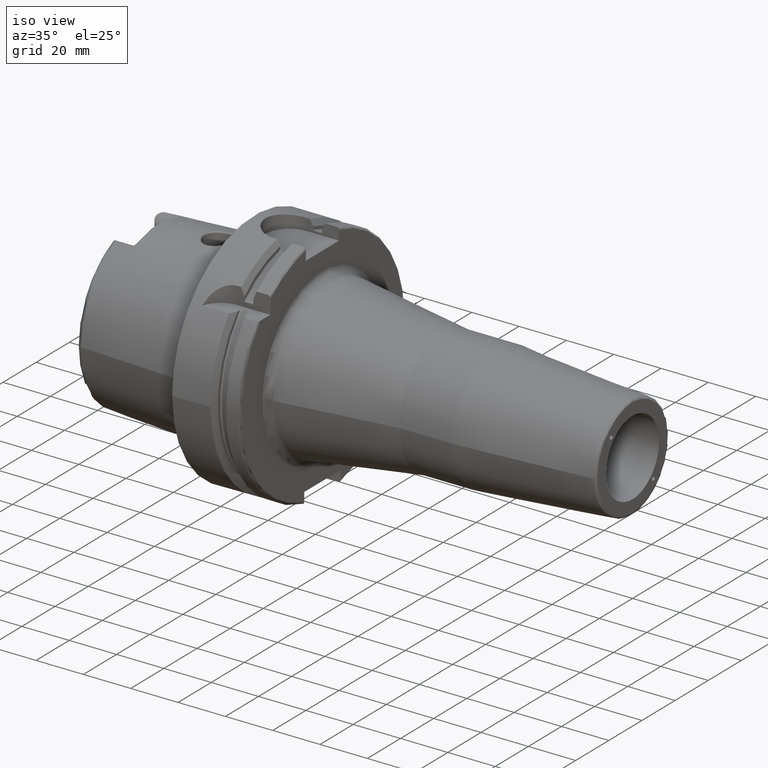
[diagram: clean part render]
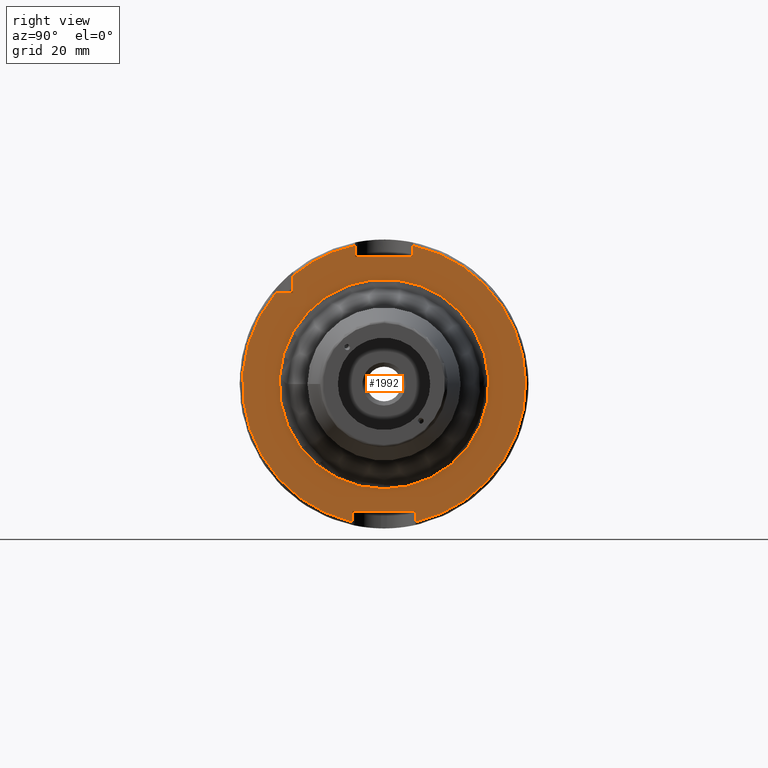
[diagram: tour spotlight — one face highlighted and labeled with its STEP entity id]
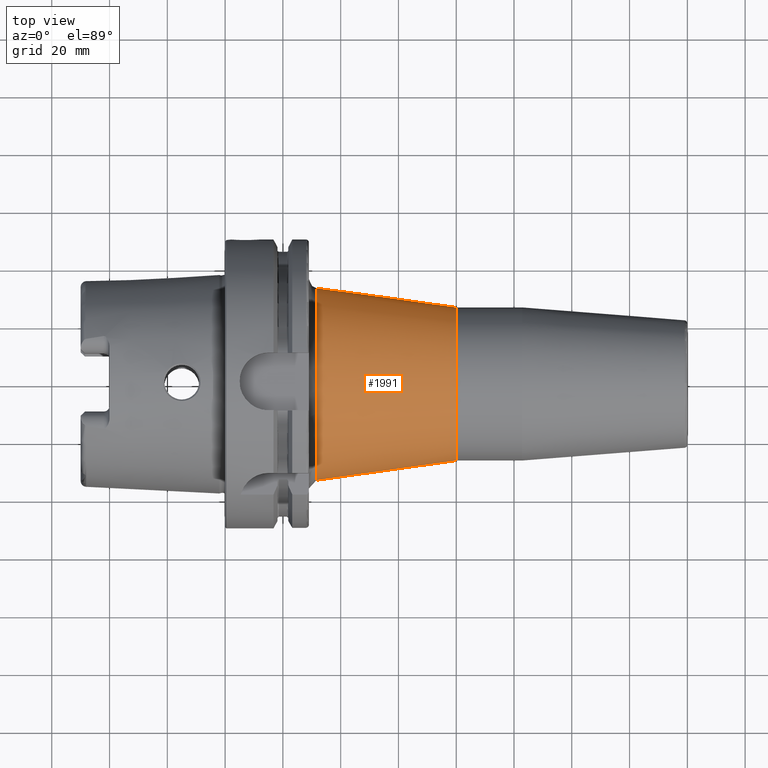
[diagram: tour spotlight — one face highlighted and labeled with its STEP entity id]
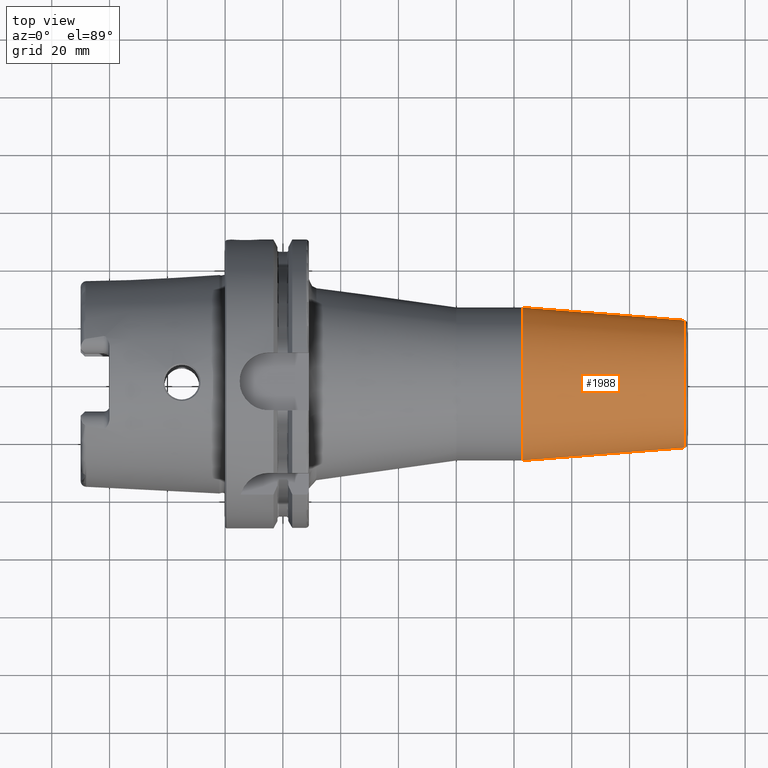
[diagram: tour spotlight — one face highlighted and labeled with its STEP entity id]
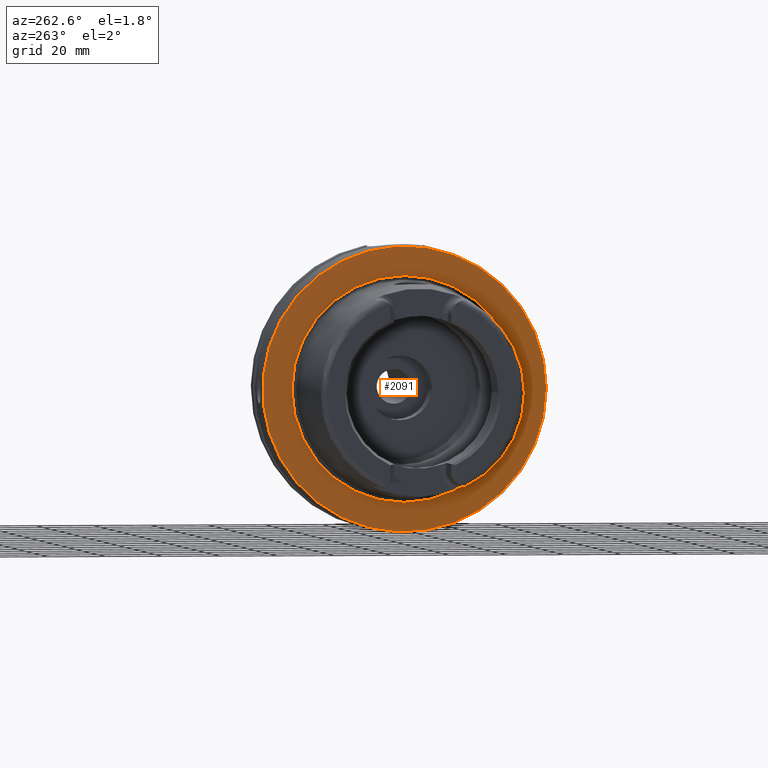
[diagram: tour spotlight — one face highlighted and labeled with its STEP entity id]
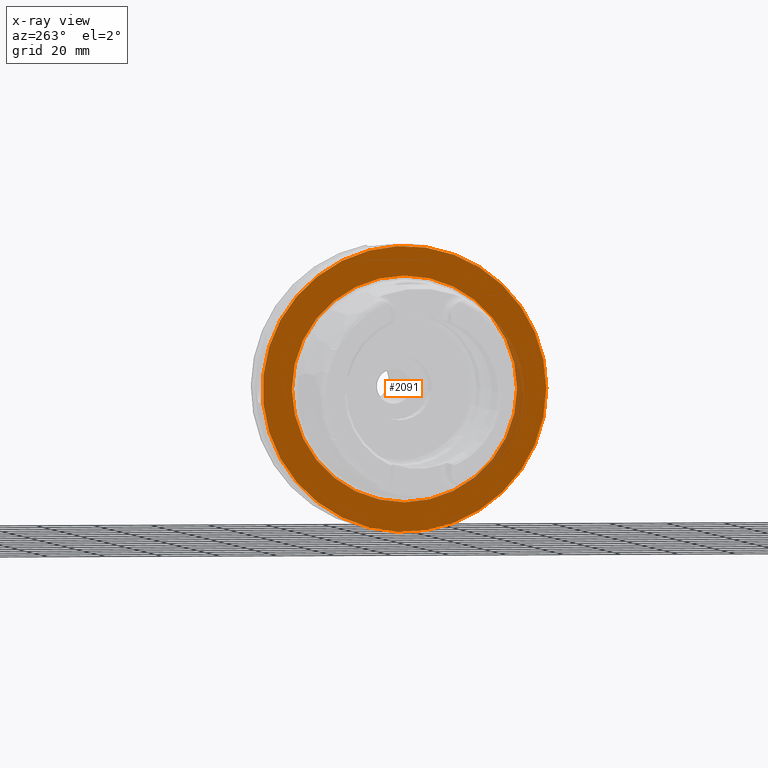
[diagram: x-ray of the same camera — body ghosted, this tour face saturated]
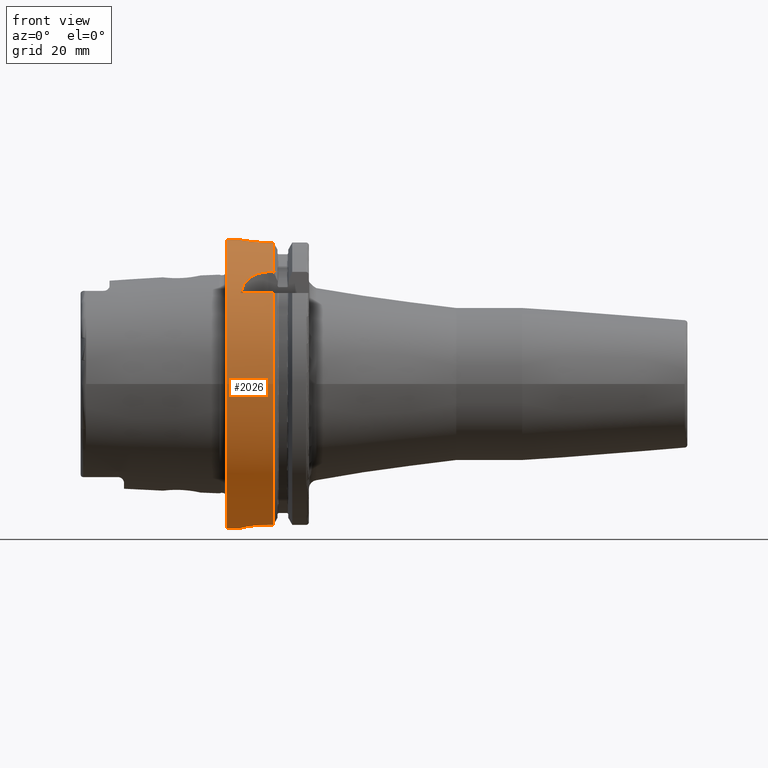
[diagram: tour spotlight — one face highlighted and labeled with its STEP entity id]
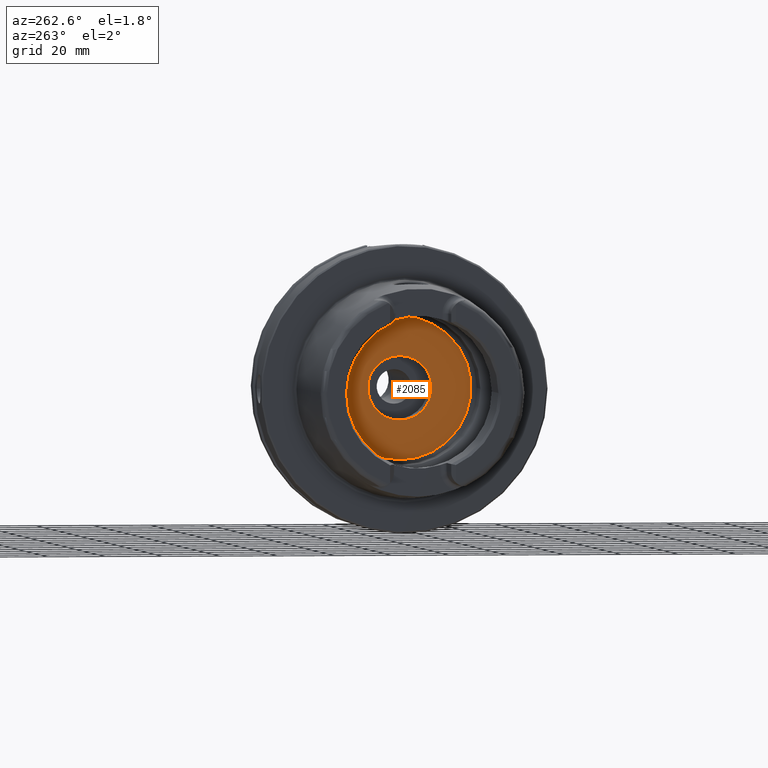
[diagram: tour spotlight — one face highlighted and labeled with its STEP entity id]
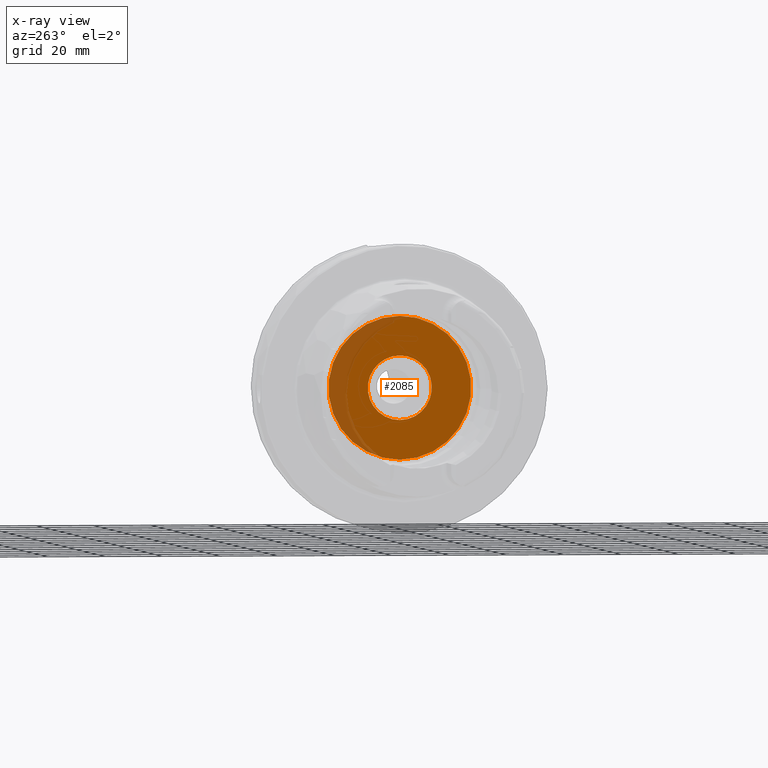
[diagram: x-ray of the same camera — body ghosted, this tour face saturated]
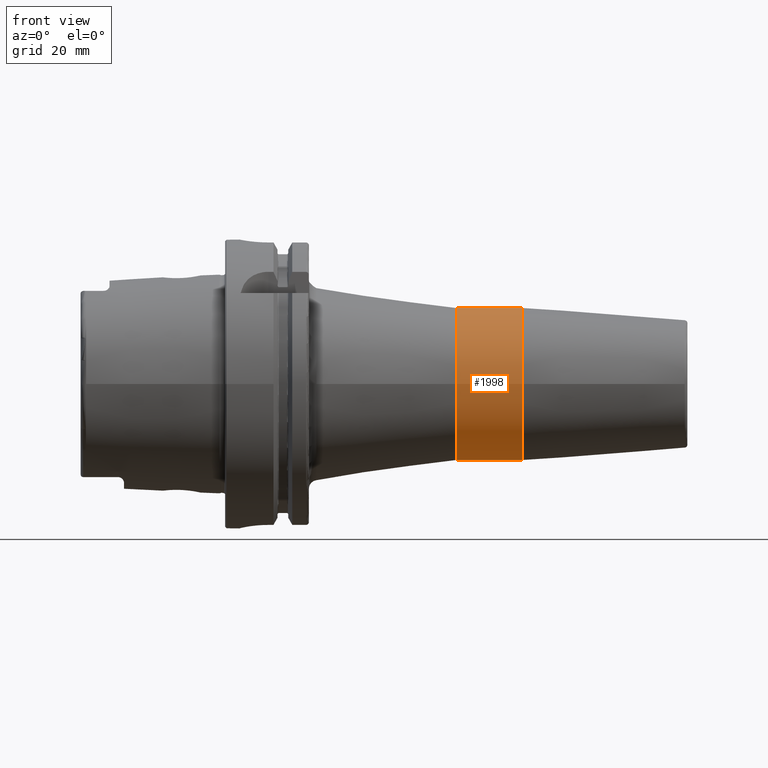
[diagram: tour spotlight — one face highlighted and labeled with its STEP entity id]
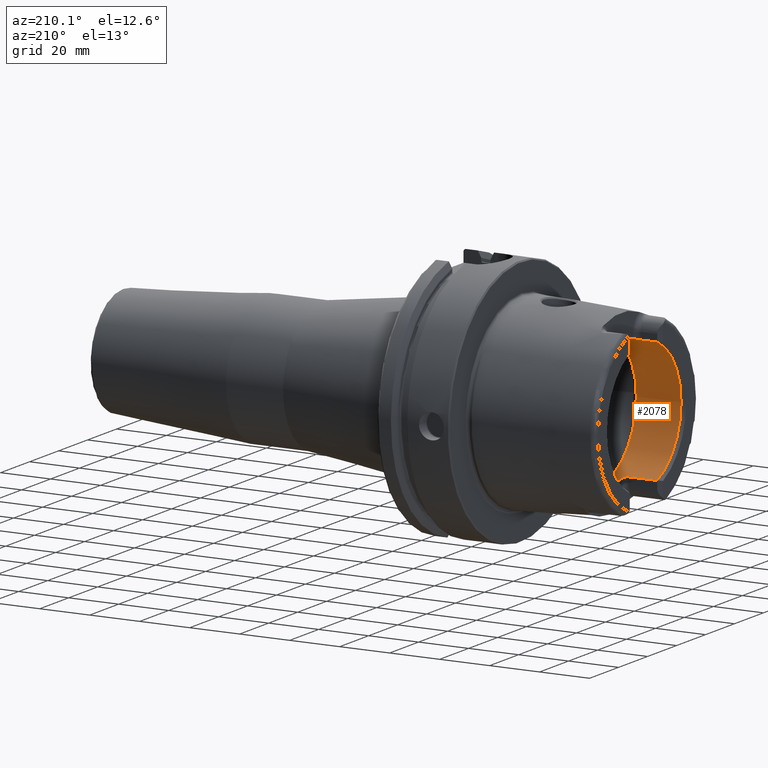
[diagram: tour spotlight — one face highlighted and labeled with its STEP entity id]
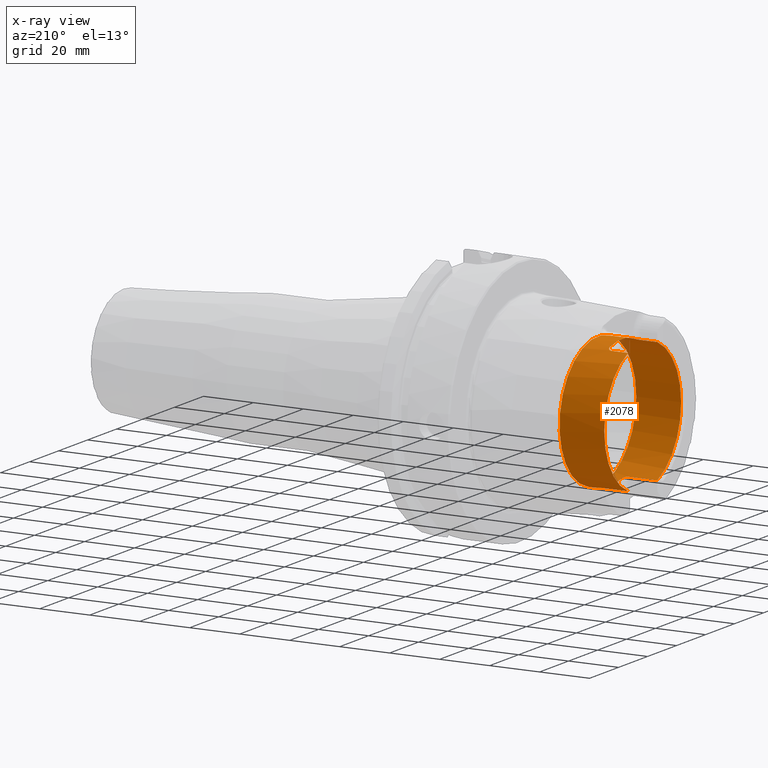
[diagram: x-ray of the same camera — body ghosted, this tour face saturated]
A machine part: a face-by-face anatomy tour. The part has 120 B-rep faces; the first image is the clean iso view, then the 8 largest visible faces are spotlighted one at a time (largest first), each with its STEP entity span.

Face 1 — right view, entity #1992. In plain terms, the highlighted planar face has unit normal (1, 0, 0).
Definition (entity closure, byte-faithful):
#88=FACE_BOUND('',#341,.T.);
#99=PLANE('',#2150);
#217=FACE_OUTER_BOUND('',#340,.T.);
#340=EDGE_LOOP('',(#1369,#1370,#1371,#1372,#1373,#1374,#1375,#1376,#1377,
#1378,#1379));
#341=EDGE_LOOP('',(#1380));
#467=LINE('',#3062,#575);
#468=LINE('',#3066,#576);
#469=LINE('',#3068,#577);
#470=LINE('',#3070,#578);
#471=LINE('',#3074,#579);
#472=LINE('',#3076,#580);
#473=LINE('',#3078,#581);
#474=LINE('',#3081,#582);
#575=VECTOR('',#2443,10.);
#576=VECTOR('',#2446,10.);
#577=VECTOR('',#2447,10.);
#578=VECTOR('',#2448,10.);
#579=VECTOR('',#2451,10.);
#580=VECTOR('',#2452,10.);
#581=VECTOR('',#2453,10.);
#582=VECTOR('',#2456,10.);
#687=CIRCLE('',#2146,36.2754427832707);
#690=CIRCLE('',#2151,49.);
#691=CIRCLE('',#2152,49.);
#692=CIRCLE('',#2153,49.);
#821=VERTEX_POINT('',#3051);
#823=VERTEX_POINT('',#3060);
#824=VERTEX_POINT('',#3061);
#825=VERTEX_POINT('',#3063);
#826=VERTEX_POINT('',#3065);
#827=VERTEX_POINT('',#3067);
#828=VERTEX_POINT('',#3069);
#829=VERTEX_POINT('',#3071);
#830=VERTEX_POINT('',#3073);
#831=VERTEX_POINT('',#3075);
#832=VERTEX_POINT('',#3077);
#833=VERTEX_POINT('',#3079);
#1031=EDGE_CURVE('',#821,#821,#687,.T.);
#1035=EDGE_CURVE('',#823,#824,#467,.T.);
#1036=EDGE_CURVE('',#824,#825,#690,.T.);
#1037=EDGE_CURVE('',#825,#826,#468,.T.);
#1038=EDGE_CURVE('',#826,#827,#469,.T.);
#1039=EDGE_CURVE('',#827,#828,#470,.T.);
#1040=EDGE_CURVE('',#828,#829,#691,.T.);
#1041=EDGE_CURVE('',#829,#830,#471,.T.);
#1042=EDGE_CURVE('',#830,#831,#472,.T.);
#1043=EDGE_CURVE('',#831,#832,#473,.T.);
#1044=EDGE_CURVE('',#832,#833,#692,.T.);
#1045=EDGE_CURVE('',#833,#823,#474,.T.);
#1369=ORIENTED_EDGE('',*,*,#1035,.T.);
#1370=ORIENTED_EDGE('',*,*,#1036,.T.);
#1371=ORIENTED_EDGE('',*,*,#1037,.T.);
#1372=ORIENTED_EDGE('',*,*,#1038,.T.);
#1373=ORIENTED_EDGE('',*,*,#1039,.T.);
#1374=ORIENTED_EDGE('',*,*,#1040,.T.);
#1375=ORIENTED_EDGE('',*,*,#1041,.T.);
#1376=ORIENTED_EDGE('',*,*,#1042,.T.);
#1377=ORIENTED_EDGE('',*,*,#1043,.T.);
#1378=ORIENTED_EDGE('',*,*,#1044,.T.);
#1379=ORIENTED_EDGE('',*,*,#1045,.T.);
#1380=ORIENTED_EDGE('',*,*,#1031,.F.);
#1992=ADVANCED_FACE('',(#217,#88),#99,.T.);
#2146=AXIS2_PLACEMENT_3D('',#3053,#2432,#2433);
#2150=AXIS2_PLACEMENT_3D('',#3059,#2441,#2442);
#2151=AXIS2_PLACEMENT_3D('',#3064,#2444,#2445);
#2152=AXIS2_PLACEMENT_3D('',#3072,#2449,#2450);
#2153=AXIS2_PLACEMENT_3D('',#3080,#2454,#2455);
#2432=DIRECTION('center_axis',(1.,0.,0.));
#2433=DIRECTION('ref_axis',(0.,-1.,-1.22464679914735E-16));
#2441=DIRECTION('center_axis',(1.,0.,0.));
#2442=DIRECTION('ref_axis',(0.,0.,-1.));
#2443=DIRECTION('',(0.,-1.,0.));
#2444=DIRECTION('center_axis',(1.,0.,0.));
#2445=DIRECTION('ref_axis',(0.,0.,-1.));
#2446=DIRECTION('',(0.,0.,1.));
#2447=DIRECTION('',(0.,1.,0.));
#2448=DIRECTION('',(0.,0.,-1.));
#2449=DIRECTION('center_axis',(1.,0.,0.));
#2450=DIRECTION('ref_axis',(0.,0.,-1.));
#2451=DIRECTION('',(0.,0.,-1.));
#2452=DIRECTION('',(0.,-1.,0.));
#2453=DIRECTION('',(0.,0.,1.));
#2454=DIRECTION('center_axis',(1.,0.,0.));
#2455=DIRECTION('ref_axis',(0.,0.,-1.));
#2456=DIRECTION('',(0.,0.,-1.));
#3051=CARTESIAN_POINT('',(29.,-4.44246048921854E-15,-36.2754427832707));
#3053=CARTESIAN_POINT('Origin',(29.,0.,0.));
#3059=CARTESIAN_POINT('Origin',(29.,0.,0.));
#3060=CARTESIAN_POINT('',(29.,-31.5,31.5));
#3061=CARTESIAN_POINT('',(29.,-37.5333185316726,31.5));
#3062=CARTESIAN_POINT('',(29.,-18.25,31.5));
#3063=CARTESIAN_POINT('',(29.,-11.,-47.7493455452533));
#3064=CARTESIAN_POINT('Origin',(29.,0.,0.));
#3065=CARTESIAN_POINT('',(29.,-11.,-44.));
#3066=CARTESIAN_POINT('',(29.,-11.,-22.));
#3067=CARTESIAN_POINT('',(29.,11.,-44.));
#3068=CARTESIAN_POINT('',(29.,-5.55111512312578E-16,-44.));
#3069=CARTESIAN_POINT('',(29.,11.,-47.7493455452533));
#3070=CARTESIAN_POINT('',(29.,11.,-22.));
#3071=CARTESIAN_POINT('',(29.,10.,47.9687398208458));
#3072=CARTESIAN_POINT('Origin',(29.,0.,0.));
#3073=CARTESIAN_POINT('',(29.,10.,44.));
#3074=CARTESIAN_POINT('',(29.,10.,22.));
#3075=CARTESIAN_POINT('',(29.,-10.,44.));
#3076=CARTESIAN_POINT('',(29.,0.,44.));
#3077=CARTESIAN_POINT('',(29.,-10.,47.9687398208458));
#3078=CARTESIAN_POINT('',(29.,-10.,22.));
#3079=CARTESIAN_POINT('',(29.,-31.5,37.5333185316726));
#3080=CARTESIAN_POINT('Origin',(29.,0.,0.));
#3081=CARTESIAN_POINT('',(29.,-31.5,15.75));

Face 2 — top view, entity #1991. In plain terms, the highlighted conical surface has half-angle 8 deg.
Definition (entity closure, byte-faithful):
#216=FACE_OUTER_BOUND('',#339,.T.);
#339=EDGE_LOOP('',(#1364,#1365,#1366,#1367,#1368));
#466=LINE('',#3058,#574);
#574=VECTOR('',#2440,30.083791284911);
#685=CIRCLE('',#2144,33.3046385770459);
#688=CIRCLE('',#2147,33.3046385770459);
#689=CIRCLE('',#2149,26.5);
#819=VERTEX_POINT('',#3048);
#820=VERTEX_POINT('',#3049);
#822=VERTEX_POINT('',#3056);
#1029=EDGE_CURVE('',#819,#820,#685,.T.);
#1032=EDGE_CURVE('',#820,#819,#688,.T.);
#1033=EDGE_CURVE('',#822,#822,#689,.T.);
#1034=EDGE_CURVE('',#822,#819,#466,.T.);
#1364=ORIENTED_EDGE('',*,*,#1033,.F.);
#1365=ORIENTED_EDGE('',*,*,#1034,.T.);
#1366=ORIENTED_EDGE('',*,*,#1032,.F.);
#1367=ORIENTED_EDGE('',*,*,#1029,.F.);
#1368=ORIENTED_EDGE('',*,*,#1034,.F.);
#1968=CONICAL_SURFACE('',#2148,30.083791284911,0.139626340159547);
#1991=ADVANCED_FACE('',(#216),#1968,.T.);
#2144=AXIS2_PLACEMENT_3D('',#3050,#2428,#2429);
#2147=AXIS2_PLACEMENT_3D('',#3054,#2434,#2435);
#2148=AXIS2_PLACEMENT_3D('',#3055,#2436,#2437);
#2149=AXIS2_PLACEMENT_3D('',#3057,#2438,#2439);
#2428=DIRECTION('center_axis',(-1.,0.,0.));
#2429=DIRECTION('ref_axis',(0.,-1.,-1.22464679914735E-16));
#2434=DIRECTION('center_axis',(-1.,0.,0.));
#2435=DIRECTION('ref_axis',(0.,-1.,-1.22464679914735E-16));
#2436=DIRECTION('center_axis',(-1.,0.,0.));
#2437=DIRECTION('ref_axis',(0.,1.,0.));
#2438=DIRECTION('center_axis',(1.,0.,0.));
#2439=DIRECTION('ref_axis',(0.,0.,-1.));
#2440=DIRECTION('',(-0.99026806874157,-0.139173100960066,-1.70437892618156E-17));
#3048=CARTESIAN_POINT('',(31.5824806971198,-33.3046385770459,-4.07864190301388E-15));
#3049=CARTESIAN_POINT('',(31.5824806971198,-4.07864190301388E-15,-33.3046385770459));
#3050=CARTESIAN_POINT('Origin',(31.5824806971198,0.,-7.39557098644699E-31));
#3054=CARTESIAN_POINT('Origin',(31.5824806971198,0.,-7.39557098644699E-31));
#3055=CARTESIAN_POINT('Origin',(54.5,0.,0.));
#3056=CARTESIAN_POINT('',(80.,-26.5,-3.24531401774049E-15));
#3057=CARTESIAN_POINT('Origin',(80.,0.,0.));
#3058=CARTESIAN_POINT('',(54.5,-30.083791284911,-3.68420187032833E-15));

Face 3 — top view, entity #1988. In plain terms, the highlighted conical surface has half-angle 4.5 deg.
Definition (entity closure, byte-faithful):
#213=FACE_OUTER_BOUND('',#333,.T.);
#333=EDGE_LOOP('',(#1350,#1351,#1352,#1353,#1354));
#465=LINE('',#3042,#573);
#573=VECTOR('',#2419,24.25);
#681=CIRCLE('',#2137,22.0725268420749);
#682=CIRCLE('',#2138,22.0725268420749);
#683=CIRCLE('',#2140,26.5);
#815=VERTEX_POINT('',#3035);
#816=VERTEX_POINT('',#3037);
#817=VERTEX_POINT('',#3041);
#1024=EDGE_CURVE('',#815,#816,#681,.T.);
#1025=EDGE_CURVE('',#816,#815,#682,.T.);
#1026=EDGE_CURVE('',#816,#817,#465,.T.);
#1027=EDGE_CURVE('',#817,#817,#683,.T.);
#1350=ORIENTED_EDGE('',*,*,#1025,.F.);
#1351=ORIENTED_EDGE('',*,*,#1026,.T.);
#1352=ORIENTED_EDGE('',*,*,#1027,.T.);
#1353=ORIENTED_EDGE('',*,*,#1026,.F.);
#1354=ORIENTED_EDGE('',*,*,#1024,.F.);
#1967=CONICAL_SURFACE('',#2139,24.25,0.0785398163397448);
#1988=ADVANCED_FACE('',(#213),#1967,.T.);
#2137=AXIS2_PLACEMENT_3D('',#3038,#2413,#2414);
#2138=AXIS2_PLACEMENT_3D('',#3039,#2415,#2416);
#2139=AXIS2_PLACEMENT_3D('',#3040,#2417,#2418);
#2140=AXIS2_PLACEMENT_3D('',#3043,#2420,#2421);
#2413=DIRECTION('center_axis',(1.,0.,0.));
#2414=DIRECTION('ref_axis',(0.,-1.,3.06161699786838E-17));
#2415=DIRECTION('center_axis',(1.,0.,0.));
#2416=DIRECTION('ref_axis',(0.,-1.,3.06161699786838E-17));
#2417=DIRECTION('center_axis',(-1.,0.,0.));
#2418=DIRECTION('ref_axis',(0.,1.,0.));
#2419=DIRECTION('',(-0.996917333733128,-0.0784590957278449,-9.60846804471011E-18));
#2420=DIRECTION('center_axis',(1.,0.,0.));
#2421=DIRECTION('ref_axis',(0.,0.,-1.));
#3035=CARTESIAN_POINT('',(159.078459095728,-2.70310493462411E-15,22.0725268420749));
#3037=CARTESIAN_POINT('',(159.078459095728,-22.0725268420749,-2.70310493462411E-15));
#3038=CARTESIAN_POINT('Origin',(159.078459095728,0.,-3.37888116828014E-15));
#3039=CARTESIAN_POINT('Origin',(159.078459095728,0.,-3.37888116828014E-15));
#3040=CARTESIAN_POINT('Origin',(131.411039343607,0.,0.));
#3041=CARTESIAN_POINT('',(102.822078687214,-26.5,-3.24531401774049E-15));
#3042=CARTESIAN_POINT('',(131.411039343607,-24.25,-2.96976848793233E-15));
#3043=CARTESIAN_POINT('Origin',(102.822078687214,0.,0.));

Face 4 — auxiliary view, entity #2091. An x-ray twin of the same camera follows (body ghosted, this face saturated) — the face is partly hidden behind the body. In plain terms, the highlighted planar face has unit normal (-1, 0, 0).
Definition (entity closure, byte-faithful):
#97=FACE_BOUND('',#449,.T.);
#133=PLANE('',#2362);
#316=FACE_OUTER_BOUND('',#448,.T.);
#448=EDGE_LOOP('',(#1915));
#449=EDGE_LOOP('',(#1916));
#796=CIRCLE('',#2361,39.2747800249997);
#797=CIRCLE('',#2363,49.5);
#1009=VERTEX_POINT('',#4502);
#1010=VERTEX_POINT('',#4506);
#1316=EDGE_CURVE('',#1009,#1009,#796,.T.);
#1317=EDGE_CURVE('',#1010,#1010,#797,.T.);
#1915=ORIENTED_EDGE('',*,*,#1317,.F.);
#1916=ORIENTED_EDGE('',*,*,#1316,.T.);
#2091=ADVANCED_FACE('',(#316,#97),#133,.T.);
#2361=AXIS2_PLACEMENT_3D('',#4504,#2962,#2963);
#2362=AXIS2_PLACEMENT_3D('',#4505,#2964,#2965);
#2363=AXIS2_PLACEMENT_3D('',#4507,#2966,#2967);
#2962=DIRECTION('center_axis',(1.,0.,0.));
#2963=DIRECTION('ref_axis',(0.,0.,-1.));
#2964=DIRECTION('center_axis',(-1.,0.,0.));
#2965=DIRECTION('ref_axis',(0.,0.,1.));
#2966=DIRECTION('center_axis',(1.,0.,0.));
#2967=DIRECTION('ref_axis',(0.,0.,-1.));
#4502=CARTESIAN_POINT('',(-1.04950770296597E-15,-39.2747800249997,-4.80977336448322E-15));
#4504=CARTESIAN_POINT('Origin',(0.,0.,0.));
#4505=CARTESIAN_POINT('Origin',(0.,49.5,0.));
#4506=CARTESIAN_POINT('',(1.28369537222284E-15,-49.5,-6.0620016557794E-15));
#4507=CARTESIAN_POINT('Origin',(0.,0.,0.));

Face 5 — front view, entity #2026. In plain terms, the highlighted cylindrical surface (bore or boss wall) has radius 50 mm, axis along (1, 0, 0).
Definition (entity closure, byte-faithful):
#56=B_SPLINE_CURVE_WITH_KNOTS('',3,(#3858,#3859,#3860,#3861,#3862,#3863,
#3864,#3865,#3866,#3867,#3868,#3869,#3870,#3871,#3872,#3873,#3874,#3875,
#3876,#3877,#3878,#3879,#3880,#3881,#3882,#3883),.UNSPECIFIED.,.F.,.F.,
(4,2,2,2,2,2,2,2,2,2,2,2,4),(0.,0.188478911015149,0.376957822030298,0.565436091508923,
0.753914360987547,0.942392630466172,1.1308708999448,1.31934981095995,1.50782872197509,
1.69630763299024,1.88478654400539,2.07326481348402,2.26174308296264),
 .UNSPECIFIED.);
#57=B_SPLINE_CURVE_WITH_KNOTS('',3,(#3884,#3885,#3886,#3887,#3888,#3889,
#3890,#3891,#3892,#3893),.UNSPECIFIED.,.F.,.F.,(4,2,2,2,4),(2.26174308296264,
2.45022135244127,2.63869962191989,2.82717853293504,3.01565744395019),
 .UNSPECIFIED.);
#58=B_SPLINE_CURVE_WITH_KNOTS('',3,(#3897,#3898,#3899,#3900,#3901,#3902,
#3903,#3904,#3905,#3906,#3907,#3908),.UNSPECIFIED.,.F.,.F.,(4,2,2,2,2,4),
(1.13213255574021,1.59216410027009,1.87572541272146,2.15928672517283,2.38471683342296,
2.61014694167308),.UNSPECIFIED.);
#65=B_SPLINE_CURVE_WITH_KNOTS('',3,(#4021,#4022,#4023,#4024,#4025,#4026,
#4027,#4028,#4029,#4030,#4031,#4032,#4033,#4034,#4035,#4036,#4037,#4038),
 .UNSPECIFIED.,.F.,.F.,(4,2,2,2,2,2,2,2,4),(0.,0.377795255890194,0.755590511780389,
1.13336459804459,1.51113868430879,1.88891277057299,2.26668685683718,2.64448211272738,
3.02227736861757),.UNSPECIFIED.);
#66=B_SPLINE_CURVE_WITH_KNOTS('',3,(#4046,#4047,#4048,#4049,#4050,#4051,
#4052,#4053,#4054,#4055),.UNSPECIFIED.,.F.,.F.,(4,2,2,2,4),(0.,0.377863193874929,
0.755726387749858,1.13417752669663,1.51262866564341),.UNSPECIFIED.);
#67=B_SPLINE_CURVE_WITH_KNOTS('',3,(#4059,#4060,#4061,#4062,#4063,#4064,
#4065,#4066,#4067,#4068),.UNSPECIFIED.,.F.,.F.,(4,2,2,2,4),(1.50996806152532,
1.8884192004721,2.26687033941887,2.6447335332938,3.02259672716873),
 .UNSPECIFIED.);
#93=FACE_BOUND('',#380,.T.);
#186=CYLINDRICAL_SURFACE('',#2232,50.);
#251=FACE_OUTER_BOUND('',#379,.T.);
#379=EDGE_LOOP('',(#1577,#1578,#1579,#1580,#1581,#1582,#1583,#1584,#1585,
#1586,#1587,#1588,#1589,#1590,#1591,#1592,#1593,#1594));
#380=EDGE_LOOP('',(#1595,#1596));
#507=LINE('',#3914,#615);
#513=LINE('',#3966,#621);
#518=LINE('',#4019,#626);
#519=LINE('',#4040,#627);
#520=LINE('',#4044,#628);
#521=LINE('',#4070,#629);
#522=LINE('',#4074,#630);
#615=VECTOR('',#2643,10.);
#621=VECTOR('',#2651,10.);
#626=VECTOR('',#2660,10.);
#627=VECTOR('',#2661,10.);
#628=VECTOR('',#2664,10.);
#629=VECTOR('',#2667,10.);
#630=VECTOR('',#2670,50.);
#732=CIRCLE('',#2233,50.);
#733=CIRCLE('',#2234,50.);
#734=CIRCLE('',#2235,50.);
#735=CIRCLE('',#2236,50.);
#736=CIRCLE('',#2237,50.);
#737=CIRCLE('',#2238,50.);
#909=VERTEX_POINT('',#3855);
#910=VERTEX_POINT('',#3857);
#911=VERTEX_POINT('',#3895);
#912=VERTEX_POINT('',#3896);
#914=VERTEX_POINT('',#3913);
#923=VERTEX_POINT('',#3965);
#932=VERTEX_POINT('',#4016);
#933=VERTEX_POINT('',#4018);
#934=VERTEX_POINT('',#4020);
#935=VERTEX_POINT('',#4039);
#936=VERTEX_POINT('',#4041);
#937=VERTEX_POINT('',#4043);
#938=VERTEX_POINT('',#4045);
#939=VERTEX_POINT('',#4056);
#940=VERTEX_POINT('',#4058);
#941=VERTEX_POINT('',#4069);
#942=VERTEX_POINT('',#4071);
#943=VERTEX_POINT('',#4073);
#1150=EDGE_CURVE('',#910,#909,#56,.T.);
#1151=EDGE_CURVE('',#909,#910,#57,.T.);
#1152=EDGE_CURVE('',#911,#912,#58,.T.);
#1155=EDGE_CURVE('',#912,#914,#507,.T.);
#1166=EDGE_CURVE('',#923,#911,#513,.T.);
#1176=EDGE_CURVE('',#932,#914,#732,.T.);
#1177=EDGE_CURVE('',#932,#933,#518,.T.);
#1178=EDGE_CURVE('',#933,#934,#65,.T.);
#1179=EDGE_CURVE('',#934,#935,#519,.T.);
#1180=EDGE_CURVE('',#936,#935,#733,.T.);
#1181=EDGE_CURVE('',#936,#937,#520,.T.);
#1182=EDGE_CURVE('',#937,#938,#66,.T.);
#1183=EDGE_CURVE('',#938,#939,#734,.T.);
#1184=EDGE_CURVE('',#939,#940,#67,.T.);
#1185=EDGE_CURVE('',#940,#941,#521,.T.);
#1186=EDGE_CURVE('',#942,#941,#735,.T.);
#1187=EDGE_CURVE('',#942,#943,#522,.T.);
#1188=EDGE_CURVE('',#943,#943,#736,.T.);
#1189=EDGE_CURVE('',#923,#942,#737,.T.);
#1577=ORIENTED_EDGE('',*,*,#1166,.T.);
#1578=ORIENTED_EDGE('',*,*,#1152,.T.);
#1579=ORIENTED_EDGE('',*,*,#1155,.T.);
#1580=ORIENTED_EDGE('',*,*,#1176,.F.);
#1581=ORIENTED_EDGE('',*,*,#1177,.T.);
#1582=ORIENTED_EDGE('',*,*,#1178,.T.);
#1583=ORIENTED_EDGE('',*,*,#1179,.T.);
#1584=ORIENTED_EDGE('',*,*,#1180,.F.);
#1585=ORIENTED_EDGE('',*,*,#1181,.T.);
#1586=ORIENTED_EDGE('',*,*,#1182,.T.);
#1587=ORIENTED_EDGE('',*,*,#1183,.T.);
#1588=ORIENTED_EDGE('',*,*,#1184,.T.);
#1589=ORIENTED_EDGE('',*,*,#1185,.T.);
#1590=ORIENTED_EDGE('',*,*,#1186,.F.);
#1591=ORIENTED_EDGE('',*,*,#1187,.T.);
#1592=ORIENTED_EDGE('',*,*,#1188,.T.);
#1593=ORIENTED_EDGE('',*,*,#1187,.F.);
#1594=ORIENTED_EDGE('',*,*,#1189,.F.);
#1595=ORIENTED_EDGE('',*,*,#1150,.T.);
#1596=ORIENTED_EDGE('',*,*,#1151,.T.);
#2026=ADVANCED_FACE('',(#251,#93),#186,.T.);
#2232=AXIS2_PLACEMENT_3D('',#4015,#2656,#2657);
#2233=AXIS2_PLACEMENT_3D('',#4017,#2658,#2659);
#2234=AXIS2_PLACEMENT_3D('',#4042,#2662,#2663);
#2235=AXIS2_PLACEMENT_3D('',#4057,#2665,#2666);
#2236=AXIS2_PLACEMENT_3D('',#4072,#2668,#2669);
#2237=AXIS2_PLACEMENT_3D('',#4075,#2671,#2672);
#2238=AXIS2_PLACEMENT_3D('',#4076,#2673,#2674);
#2643=DIRECTION('',(1.,0.,0.));
#2651=DIRECTION('',(-1.,0.,0.));
#2656=DIRECTION('center_axis',(1.,0.,0.));
#2657=DIRECTION('ref_axis',(0.,1.,0.));
#2658=DIRECTION('center_axis',(1.,0.,0.));
#2659=DIRECTION('ref_axis',(0.,0.,-1.));
#2660=DIRECTION('',(-1.,0.,0.));
#2661=DIRECTION('',(1.,0.,0.));
#2662=DIRECTION('center_axis',(1.,0.,0.));
#2663=DIRECTION('ref_axis',(0.,0.,-1.));
#2664=DIRECTION('',(-1.,0.,0.));
#2665=DIRECTION('center_axis',(-1.,0.,0.));
#2666=DIRECTION('ref_axis',(0.,1.,0.));
#2667=DIRECTION('',(1.,0.,0.));
#2668=DIRECTION('center_axis',(1.,0.,0.));
#2669=DIRECTION('ref_axis',(0.,0.,-1.));
#2670=DIRECTION('',(-1.,0.,0.));
#2671=DIRECTION('center_axis',(1.,0.,0.));
#2672=DIRECTION('ref_axis',(0.,0.,-1.));
#2673=DIRECTION('center_axis',(1.,0.,0.));
#2674=DIRECTION('ref_axis',(0.,0.,-1.));
#3855=CARTESIAN_POINT('',(12.,50.,-6.12323399573677E-16));
#3857=CARTESIAN_POINT('',(6.99999999999999,49.749371855331,5.));
#3858=CARTESIAN_POINT('Ctrl Pts',(6.99999999999999,49.749371855331,5.));
#3859=CARTESIAN_POINT('Ctrl Pts',(6.37173696328283,49.749371855331,5.));
#3860=CARTESIAN_POINT('Ctrl Pts',(5.70188570880885,49.7624993987098,4.87435544587055));
#3861=CARTESIAN_POINT('Ctrl Pts',(4.4701142477173,49.8098541153698,4.36395693611591));
#3862=CARTESIAN_POINT('Ctrl Pts',(3.90815809537484,49.8433908660961,3.97922590724033));
#3863=CARTESIAN_POINT('Ctrl Pts',(3.02077560297968,49.9062957431473,3.09184341484517));
#3864=CARTESIAN_POINT('Ctrl Pts',(2.63604339567929,49.9397591808605,2.52988660036719));
#3865=CARTESIAN_POINT('Ctrl Pts',(2.12564400622109,49.9869460568296,1.29811292154946));
#3866=CARTESIAN_POINT('Ctrl Pts',(1.99999999999999,50.,0.628260898262081));
#3867=CARTESIAN_POINT('Ctrl Pts',(1.99999999999999,50.,-0.628260898262082));
#3868=CARTESIAN_POINT('Ctrl Pts',(2.12564400622109,49.9869460568296,-1.29811292154946));
#3869=CARTESIAN_POINT('Ctrl Pts',(2.63604339567929,49.9397591808605,-2.52988660036719));
#3870=CARTESIAN_POINT('Ctrl Pts',(3.02077560297968,49.9062957431473,-3.09184341484517));
#3871=CARTESIAN_POINT('Ctrl Pts',(3.90815809537484,49.8433908660961,-3.97922590724033));
#3872=CARTESIAN_POINT('Ctrl Pts',(4.4701142477173,49.8098541153698,-4.36395693611591));
#3873=CARTESIAN_POINT('Ctrl Pts',(5.70188570880885,49.7624993987098,-4.87435544587055));
#3874=CARTESIAN_POINT('Ctrl Pts',(6.37173696328283,49.749371855331,-5.));
#3875=CARTESIAN_POINT('Ctrl Pts',(7.62826303671716,49.749371855331,-5.));
#3876=CARTESIAN_POINT('Ctrl Pts',(8.29811429119113,49.7624993987098,-4.87435544587055));
#3877=CARTESIAN_POINT('Ctrl Pts',(9.52988575228269,49.8098541153698,-4.36395693611591));
#3878=CARTESIAN_POINT('Ctrl Pts',(10.0918419046251,49.8433908660961,-3.97922590724033));
#3879=CARTESIAN_POINT('Ctrl Pts',(10.9792243970203,49.9062957431473,-3.09184341484517));
#3880=CARTESIAN_POINT('Ctrl Pts',(11.3639566043207,49.9397591808605,-2.52988660036719));
#3881=CARTESIAN_POINT('Ctrl Pts',(11.8743559937789,49.9869460568296,-1.29811292154947));
#3882=CARTESIAN_POINT('Ctrl Pts',(12.,50.,-0.628260898262083));
#3883=CARTESIAN_POINT('Ctrl Pts',(12.,50.,-5.55111512312578E-16));
#3884=CARTESIAN_POINT('Ctrl Pts',(12.,50.,-5.55111512312578E-16));
#3885=CARTESIAN_POINT('Ctrl Pts',(12.,50.,0.628260898262082));
#3886=CARTESIAN_POINT('Ctrl Pts',(11.8743559937789,49.9869460568296,1.29811292154946));
#3887=CARTESIAN_POINT('Ctrl Pts',(11.3639566043207,49.9397591808605,2.52988660036719));
#3888=CARTESIAN_POINT('Ctrl Pts',(10.9792243970203,49.9062957431473,3.09184341484517));
#3889=CARTESIAN_POINT('Ctrl Pts',(10.0918419046251,49.8433908660961,3.97922590724033));
#3890=CARTESIAN_POINT('Ctrl Pts',(9.52988575228269,49.8098541153698,4.36395693611591));
#3891=CARTESIAN_POINT('Ctrl Pts',(8.29811429119113,49.7624993987098,4.87435544587055));
#3892=CARTESIAN_POINT('Ctrl Pts',(7.62826303671716,49.749371855331,5.));
#3893=CARTESIAN_POINT('Ctrl Pts',(6.99999999999999,49.749371855331,5.));
#3895=CARTESIAN_POINT('',(5.36310214079494,-38.8297566307078,31.5));
#3896=CARTESIAN_POINT('',(15.,-31.5,38.8297566307078));
#3897=CARTESIAN_POINT('Ctrl Pts',(5.36310214079494,-38.8297566307078,31.5));
#3898=CARTESIAN_POINT('Ctrl Pts',(5.63795050776221,-37.8378299510303,32.722738779917));
#3899=CARTESIAN_POINT('Ctrl Pts',(6.08245260240086,-36.8264130955983,33.8486741193789));
#3900=CARTESIAN_POINT('Ctrl Pts',(7.14730321206235,-35.2667182945212,35.4540138707062));
#3901=CARTESIAN_POINT('Ctrl Pts',(7.68113760815893,-34.6306580359392,36.0741351437033));
#3902=CARTESIAN_POINT('Ctrl Pts',(8.97436758466638,-33.4722127660808,37.1515365058173));
#3903=CARTESIAN_POINT('Ctrl Pts',(9.73574998094174,-32.9521170857844,37.6088911783762));
#3904=CARTESIAN_POINT('Ctrl Pts',(11.1521999725134,-32.2432973482077,38.2170233500259));
#3905=CARTESIAN_POINT('Ctrl Pts',(11.8888981504148,-31.9629772872452,38.4503075998006));
#3906=CARTESIAN_POINT('Ctrl Pts',(13.4369856471743,-31.5908755949743,38.7566077888176));
#3907=CARTESIAN_POINT('Ctrl Pts',(14.2485663058329,-31.5,38.8297566307078));
#3908=CARTESIAN_POINT('Ctrl Pts',(15.,-31.5,38.8297566307078));
#3913=CARTESIAN_POINT('',(16.7379709790786,-31.5,38.8297566307078));
#3914=CARTESIAN_POINT('',(8.61898548953931,-31.5,38.8297566307078));
#3965=CARTESIAN_POINT('',(16.7379709790786,-38.8297566307078,31.5));
#3966=CARTESIAN_POINT('',(8.61898548953931,-38.8297566307078,31.5));
#4015=CARTESIAN_POINT('Origin',(8.61898548953931,0.,0.));
#4016=CARTESIAN_POINT('',(16.7379709790786,-10.,48.9897948556636));
#4017=CARTESIAN_POINT('Origin',(16.7379709790786,0.,0.));
#4018=CARTESIAN_POINT('',(15.,-10.,48.9897948556636));
#4019=CARTESIAN_POINT('',(8.61898548953931,-10.,48.9897948556636));
#4020=CARTESIAN_POINT('',(15.,10.,48.9897948556636));
#4021=CARTESIAN_POINT('Ctrl Pts',(15.,-10.,48.9897948556636));
#4022=CARTESIAN_POINT('Ctrl Pts',(13.740682480366,-10.,48.9897948556636));
#4023=CARTESIAN_POINT('Ctrl Pts',(12.3998222283811,-9.74762796248614,49.0433876618447));
#4024=CARTESIAN_POINT('Ctrl Pts',(9.93707994969945,-8.72605417648382,49.2354150792771));
#4025=CARTESIAN_POINT('Ctrl Pts',(8.81489539818993,-7.95703102192089,49.3709085101933));
#4026=CARTESIAN_POINT('Ctrl Pts',(7.04301862271998,-6.18515424645094,49.6240337638318));
#4027=CARTESIAN_POINT('Ctrl Pts',(6.27395658455242,-5.06294861197626,49.7583347151863));
#4028=CARTESIAN_POINT('Ctrl Pts',(5.25235457764165,-2.60013306081865,49.9476188647081));
#4029=CARTESIAN_POINT('Ctrl Pts',(4.99999999999999,-1.259246954214,50.));
#4030=CARTESIAN_POINT('Ctrl Pts',(4.99999999999999,1.259246954214,50.));
#4031=CARTESIAN_POINT('Ctrl Pts',(5.25235457764165,2.60013306081865,49.9476188647081));
#4032=CARTESIAN_POINT('Ctrl Pts',(6.27395658455242,5.06294861197626,49.7583347151863));
#4033=CARTESIAN_POINT('Ctrl Pts',(7.04301862271998,6.18515424645094,49.6240337638318));
#4034=CARTESIAN_POINT('Ctrl Pts',(8.81489539818993,7.95703102192089,49.3709085101933));
#4035=CARTESIAN_POINT('Ctrl Pts',(9.93707994969945,8.72605417648382,49.2354150792771));
#4036=CARTESIAN_POINT('Ctrl Pts',(12.3998222283811,9.74762796248614,49.0433876618447));
#4037=CARTESIAN_POINT('Ctrl Pts',(13.740682480366,10.,48.9897948556636));
#4038=CARTESIAN_POINT('Ctrl Pts',(15.,10.,48.9897948556636));
#4039=CARTESIAN_POINT('',(16.7379709790786,10.,48.9897948556636));
#4040=CARTESIAN_POINT('',(8.61898548953931,10.,48.9897948556636));
#4041=CARTESIAN_POINT('',(16.7379709790786,11.,-48.7749935930288));
#4042=CARTESIAN_POINT('Origin',(16.7379709790786,0.,0.));
#4043=CARTESIAN_POINT('',(15.,11.,-48.7749935930288));
#4044=CARTESIAN_POINT('',(8.61898548953931,11.,-48.7749935930288));
#4045=CARTESIAN_POINT('',(4.99999999999999,0.999999999999997,-49.9899989998));
#4046=CARTESIAN_POINT('Ctrl Pts',(15.,11.,-48.7749935930288));
#4047=CARTESIAN_POINT('Ctrl Pts',(13.7404560204169,11.,-48.7749935930288));
#4048=CARTESIAN_POINT('Ctrl Pts',(12.3998213084084,10.7475295248871,-48.8340306344483));
#4049=CARTESIAN_POINT('Ctrl Pts',(9.9383361278342,9.72667325975831,-49.0475663096823));
#4050=CARTESIAN_POINT('Ctrl Pts',(8.81713821454868,8.95850056252305,-49.1990678796225));
#4051=CARTESIAN_POINT('Ctrl Pts',(7.04551978193545,7.18842719108522,-49.4887060645896));
#4052=CARTESIAN_POINT('Ctrl Pts',(6.27594389465425,6.06650925178,-49.6460359942126));
#4053=CARTESIAN_POINT('Ctrl Pts',(5.25307325920197,3.60309260864685,-49.8853600567865));
#4054=CARTESIAN_POINT('Ctrl Pts',(4.99999999999999,2.26125147049483,-49.9647689238702));
#4055=CARTESIAN_POINT('Ctrl Pts',(4.99999999999999,1.,-49.9899989998));
#4056=CARTESIAN_POINT('',(4.99999999999999,-1.00000000000001,-49.9899989998));
#4057=CARTESIAN_POINT('Origin',(4.99999999999999,0.,0.));
#4058=CARTESIAN_POINT('',(15.,-11.,-48.7749935930288));
#4059=CARTESIAN_POINT('Ctrl Pts',(4.99999999999999,-1.,-49.9899989998));
#4060=CARTESIAN_POINT('Ctrl Pts',(4.99999999999999,-2.26125147049483,-49.9647689238702));
#4061=CARTESIAN_POINT('Ctrl Pts',(5.25307325920197,-3.60309260864686,-49.8853600567865));
#4062=CARTESIAN_POINT('Ctrl Pts',(6.27594389465425,-6.06650925178001,-49.6460359942126));
#4063=CARTESIAN_POINT('Ctrl Pts',(7.04551978193545,-7.18842719108522,-49.4887060645896));
#4064=CARTESIAN_POINT('Ctrl Pts',(8.81713821454868,-8.95850056252306,-49.1990678796225));
#4065=CARTESIAN_POINT('Ctrl Pts',(9.9383361278342,-9.72667325975831,-49.0475663096823));
#4066=CARTESIAN_POINT('Ctrl Pts',(12.3998213084084,-10.7475295248871,-48.8340306344483));
#4067=CARTESIAN_POINT('Ctrl Pts',(13.7404560204169,-11.,-48.7749935930288));
#4068=CARTESIAN_POINT('Ctrl Pts',(15.,-11.,-48.7749935930288));
#4069=CARTESIAN_POINT('',(16.7379709790786,-11.,-48.7749935930288));
#4070=CARTESIAN_POINT('',(8.61898548953931,-11.,-48.7749935930288));
#4071=CARTESIAN_POINT('',(16.7379709790786,-50.,-6.12323399573677E-15));
#4072=CARTESIAN_POINT('Origin',(16.7379709790786,0.,0.));
#4073=CARTESIAN_POINT('',(0.5,-50.,-6.12323399573677E-15));
#4074=CARTESIAN_POINT('',(8.61898548953931,-50.,-6.12323399573677E-15));
#4075=CARTESIAN_POINT('Origin',(0.5,0.,0.));
#4076=CARTESIAN_POINT('Origin',(16.7379709790786,0.,0.));

Face 6 — auxiliary view, entity #2085. An x-ray twin of the same camera follows (body ghosted, this face saturated) — the face is partly hidden behind the body. In plain terms, the highlighted planar face has unit normal (1, 0, 0).
Definition (entity closure, byte-faithful):
#96=FACE_BOUND('',#442,.T.);
#132=PLANE('',#2346);
#310=FACE_OUTER_BOUND('',#441,.T.);
#441=EDGE_LOOP('',(#1885));
#442=EDGE_LOOP('',(#1886));
#780=CIRCLE('',#2335,11.188101);
#787=CIRCLE('',#2347,24.9);
#996=VERTEX_POINT('',#4459);
#1002=VERTEX_POINT('',#4479);
#1295=EDGE_CURVE('',#996,#996,#780,.T.);
#1304=EDGE_CURVE('',#1002,#1002,#787,.T.);
#1885=ORIENTED_EDGE('',*,*,#1304,.T.);
#1886=ORIENTED_EDGE('',*,*,#1295,.T.);
#2085=ADVANCED_FACE('',(#310,#96),#132,.F.);
#2335=AXIS2_PLACEMENT_3D('',#4460,#2905,#2906);
#2346=AXIS2_PLACEMENT_3D('',#4478,#2929,#2930);
#2347=AXIS2_PLACEMENT_3D('',#4480,#2931,#2932);
#2905=DIRECTION('center_axis',(1.,0.,0.));
#2906=DIRECTION('ref_axis',(0.,0.,1.));
#2929=DIRECTION('center_axis',(1.,0.,0.));
#2930=DIRECTION('ref_axis',(0.,0.,-1.));
#2931=DIRECTION('center_axis',(-1.,0.,0.));
#2932=DIRECTION('ref_axis',(0.,0.,1.));
#4459=CARTESIAN_POINT('',(12.5,-1.37014720781873E-15,-11.188101));
#4460=CARTESIAN_POINT('Origin',(12.5,0.,0.));
#4478=CARTESIAN_POINT('Origin',(12.5,24.9,0.));
#4479=CARTESIAN_POINT('',(12.5,-3.04937052987691E-15,-24.9));
#4480=CARTESIAN_POINT('Origin',(12.5,0.,0.));

Face 7 — front view, entity #1998. In plain terms, the highlighted cylindrical surface (bore or boss wall) has radius 26.5 mm, axis along (1, 0, 0).
Definition (entity closure, byte-faithful):
#176=CYLINDRICAL_SURFACE('',#2166,26.5);
#223=FACE_OUTER_BOUND('',#348,.T.);
#348=EDGE_LOOP('',(#1401,#1402,#1403,#1404));
#479=LINE('',#3106,#587);
#587=VECTOR('',#2487,26.5);
#683=CIRCLE('',#2140,26.5);
#689=CIRCLE('',#2149,26.5);
#817=VERTEX_POINT('',#3041);
#822=VERTEX_POINT('',#3056);
#1027=EDGE_CURVE('',#817,#817,#683,.T.);
#1033=EDGE_CURVE('',#822,#822,#689,.T.);
#1057=EDGE_CURVE('',#817,#822,#479,.T.);
#1401=ORIENTED_EDGE('',*,*,#1027,.F.);
#1402=ORIENTED_EDGE('',*,*,#1057,.T.);
#1403=ORIENTED_EDGE('',*,*,#1033,.T.);
#1404=ORIENTED_EDGE('',*,*,#1057,.F.);
#1998=ADVANCED_FACE('',(#223),#176,.T.);
#2140=AXIS2_PLACEMENT_3D('',#3043,#2420,#2421);
#2149=AXIS2_PLACEMENT_3D('',#3057,#2438,#2439);
#2166=AXIS2_PLACEMENT_3D('',#3105,#2485,#2486);
#2420=DIRECTION('center_axis',(1.,0.,0.));
#2421=DIRECTION('ref_axis',(0.,0.,-1.));
#2438=DIRECTION('center_axis',(1.,0.,0.));
#2439=DIRECTION('ref_axis',(0.,0.,-1.));
#2485=DIRECTION('center_axis',(1.,0.,0.));
#2486=DIRECTION('ref_axis',(0.,1.,0.));
#2487=DIRECTION('',(-1.,0.,0.));
#3041=CARTESIAN_POINT('',(102.822078687214,-26.5,-3.24531401774049E-15));
#3043=CARTESIAN_POINT('Origin',(102.822078687214,0.,0.));
#3056=CARTESIAN_POINT('',(80.,-26.5,-3.24531401774049E-15));
#3057=CARTESIAN_POINT('Origin',(80.,0.,0.));
#3105=CARTESIAN_POINT('Origin',(91.4110393436069,0.,0.));
#3106=CARTESIAN_POINT('',(91.4110393436069,-26.5,-3.24531401774049E-15));

Face 8 — auxiliary view, entity #2078. An x-ray twin of the same camera follows (body ghosted, this face saturated) — the face is partly hidden behind the body. In plain terms, the highlighted cylindrical surface (bore or boss wall) has radius 26.5 mm, axis along (-1, 0, 0).
Definition (entity closure, byte-faithful):
#80=B_SPLINE_CURVE_WITH_KNOTS('',3,(#4342,#4343,#4344,#4345,#4346,#4347,
#4348,#4349,#4350,#4351),.UNSPECIFIED.,.F.,.F.,(4,2,2,2,4),(0.307245873696209,
0.387318131676521,0.467390389656833,0.542677307505841,0.617964225354849),
 .UNSPECIFIED.);
#81=B_SPLINE_CURVE_WITH_KNOTS('',3,(#4360,#4361,#4362,#4363,#4364,#4365,
#4366,#4367,#4368,#4369),.UNSPECIFIED.,.F.,.F.,(4,2,2,2,4),(0.61796422535485,
0.694491364966707,0.771018504578565,0.849854597041439,0.928690689504313),
 .UNSPECIFIED.);
#82=B_SPLINE_CURVE_WITH_KNOTS('',3,(#4382,#4383,#4384,#4385,#4386,#4387,
#4388,#4389,#4390,#4391),.UNSPECIFIED.,.F.,.F.,(4,2,2,2,4),(0.617964225354849,
0.693251143203857,0.768538061052865,0.848610319033177,0.928682577013489),
 .UNSPECIFIED.);
#83=B_SPLINE_CURVE_WITH_KNOTS('',3,(#4411,#4412,#4413,#4414,#4415,#4416,
#4417,#4418,#4419,#4420),.UNSPECIFIED.,.F.,.F.,(4,2,2,2,4),(0.307245873696209,
0.387318131676521,0.467390389656833,0.542677307505841,0.617964225354849),
 .UNSPECIFIED.);
#202=CYLINDRICAL_SURFACE('',#2330,26.5);
#303=FACE_OUTER_BOUND('',#432,.T.);
#432=EDGE_LOOP('',(#1844,#1845,#1846,#1847,#1848,#1849,#1850,#1851,#1852,
#1853,#1854,#1855,#1856,#1857,#1858,#1859,#1860));
#485=LINE('',#3126,#593);
#493=LINE('',#3201,#601);
#497=LINE('',#3265,#605);
#556=LINE('',#4407,#664);
#560=LINE('',#4455,#668);
#593=VECTOR('',#2507,10.);
#601=VECTOR('',#2553,10.);
#605=VECTOR('',#2575,10.);
#664=VECTOR('',#2854,10.);
#668=VECTOR('',#2898,26.5);
#705=CIRCLE('',#2184,26.5);
#706=CIRCLE('',#2185,26.5);
#769=CIRCLE('',#2309,26.5);
#774=CIRCLE('',#2321,26.5);
#775=CIRCLE('',#2324,26.5);
#778=CIRCLE('',#2331,26.5);
#779=CIRCLE('',#2332,26.5);
#844=VERTEX_POINT('',#3116);
#847=VERTEX_POINT('',#3124);
#856=VERTEX_POINT('',#3173);
#858=VERTEX_POINT('',#3179);
#859=VERTEX_POINT('',#3181);
#865=VERTEX_POINT('',#3199);
#871=VERTEX_POINT('',#3232);
#876=VERTEX_POINT('',#3264);
#983=VERTEX_POINT('',#4340);
#985=VERTEX_POINT('',#4359);
#989=VERTEX_POINT('',#4380);
#990=VERTEX_POINT('',#4381);
#992=VERTEX_POINT('',#4401);
#994=VERTEX_POINT('',#4452);
#995=VERTEX_POINT('',#4453);
#1066=EDGE_CURVE('',#844,#847,#485,.T.);
#1079=EDGE_CURVE('',#858,#859,#705,.T.);
#1080=EDGE_CURVE('',#859,#856,#706,.T.);
#1089=EDGE_CURVE('',#858,#865,#493,.T.);
#1102=EDGE_CURVE('',#876,#871,#497,.T.);
#1260=EDGE_CURVE('',#983,#865,#80,.T.);
#1264=EDGE_CURVE('',#876,#985,#81,.T.);
#1270=EDGE_CURVE('',#989,#990,#82,.T.);
#1276=EDGE_CURVE('',#992,#990,#769,.T.);
#1279=EDGE_CURVE('',#989,#856,#556,.T.);
#1282=EDGE_CURVE('',#992,#847,#83,.T.);
#1286=EDGE_CURVE('',#983,#985,#774,.T.);
#1288=EDGE_CURVE('',#844,#871,#775,.T.);
#1292=EDGE_CURVE('',#994,#995,#778,.T.);
#1293=EDGE_CURVE('',#994,#859,#560,.T.);
#1294=EDGE_CURVE('',#995,#994,#779,.T.);
#1844=ORIENTED_EDGE('',*,*,#1292,.F.);
#1845=ORIENTED_EDGE('',*,*,#1293,.T.);
#1846=ORIENTED_EDGE('',*,*,#1079,.F.);
#1847=ORIENTED_EDGE('',*,*,#1089,.T.);
#1848=ORIENTED_EDGE('',*,*,#1260,.F.);
#1849=ORIENTED_EDGE('',*,*,#1286,.T.);
#1850=ORIENTED_EDGE('',*,*,#1264,.F.);
#1851=ORIENTED_EDGE('',*,*,#1102,.T.);
#1852=ORIENTED_EDGE('',*,*,#1288,.F.);
#1853=ORIENTED_EDGE('',*,*,#1066,.T.);
#1854=ORIENTED_EDGE('',*,*,#1282,.F.);
#1855=ORIENTED_EDGE('',*,*,#1276,.T.);
#1856=ORIENTED_EDGE('',*,*,#1270,.F.);
#1857=ORIENTED_EDGE('',*,*,#1279,.T.);
#1858=ORIENTED_EDGE('',*,*,#1080,.F.);
#1859=ORIENTED_EDGE('',*,*,#1293,.F.);
#1860=ORIENTED_EDGE('',*,*,#1294,.F.);
#2078=ADVANCED_FACE('',(#303),#202,.F.);
#2184=AXIS2_PLACEMENT_3D('',#3182,#2531,#2532);
#2185=AXIS2_PLACEMENT_3D('',#3183,#2533,#2534);
#2309=AXIS2_PLACEMENT_3D('',#4402,#2847,#2848);
#2321=AXIS2_PLACEMENT_3D('',#4429,#2875,#2876);
#2324=AXIS2_PLACEMENT_3D('',#4444,#2881,#2882);
#2330=AXIS2_PLACEMENT_3D('',#4451,#2894,#2895);
#2331=AXIS2_PLACEMENT_3D('',#4454,#2896,#2897);
#2332=AXIS2_PLACEMENT_3D('',#4456,#2899,#2900);
#2507=DIRECTION('',(1.,0.,0.));
#2531=DIRECTION('center_axis',(1.,0.,0.));
#2532=DIRECTION('ref_axis',(0.,-1.,0.));
#2533=DIRECTION('center_axis',(1.,0.,0.));
#2534=DIRECTION('ref_axis',(0.,-1.,0.));
#2553=DIRECTION('',(1.,0.,0.));
#2575=DIRECTION('',(-1.,0.,0.));
#2847=DIRECTION('center_axis',(-1.,0.,0.));
#2848=DIRECTION('ref_axis',(0.,1.,0.));
#2854=DIRECTION('',(-1.,0.,0.));
#2875=DIRECTION('center_axis',(-1.,0.,0.));
#2876=DIRECTION('ref_axis',(0.,1.,0.));
#2881=DIRECTION('center_axis',(1.,0.,0.));
#2882=DIRECTION('ref_axis',(0.,-1.,0.));
#2894=DIRECTION('center_axis',(-1.,0.,0.));
#2895=DIRECTION('ref_axis',(0.,1.,0.));
#2896=DIRECTION('center_axis',(-1.,0.,0.));
#2897=DIRECTION('ref_axis',(0.,0.,1.));
#2898=DIRECTION('',(-1.,0.,0.));
#2899=DIRECTION('center_axis',(-1.,0.,0.));
#2900=DIRECTION('ref_axis',(0.,0.,1.));
#3116=CARTESIAN_POINT('',(-48.5,10.01,-24.5367051577835));
#3124=CARTESIAN_POINT('',(-37.,10.01,-24.5367051577835));
#3126=CARTESIAN_POINT('',(-40.2903629710818,10.01,-24.5367051577835));
#3173=CARTESIAN_POINT('',(-48.5,-10.01,-24.5367051577835));
#3179=CARTESIAN_POINT('',(-48.5,-10.01,24.5367051577835));
#3181=CARTESIAN_POINT('',(-48.5,-26.5,3.24531401774049E-15));
#3182=CARTESIAN_POINT('Origin',(-48.5,0.,0.));
#3183=CARTESIAN_POINT('Origin',(-48.5,0.,0.));
#3199=CARTESIAN_POINT('',(-42.,-10.01,24.5367051577835));
#3201=CARTESIAN_POINT('',(-40.2903629710818,-10.01,24.5367051577835));
#3232=CARTESIAN_POINT('',(-48.5,10.01,24.5367051577835));
#3264=CARTESIAN_POINT('',(-42.,10.01,24.5367051577835));
#3265=CARTESIAN_POINT('',(-40.2903629710818,10.01,24.5367051577835));
#4340=CARTESIAN_POINT('',(-40.,-8.01,25.2604414054862));
#4342=CARTESIAN_POINT('Ctrl Pts',(-40.,-8.01,25.2604414054862));
#4343=CARTESIAN_POINT('Ctrl Pts',(-40.,-8.26442271458071,25.1797648285777));
#4344=CARTESIAN_POINT('Ctrl Pts',(-40.0513332778729,-8.53503831367686,25.0892968127514));
#4345=CARTESIAN_POINT('Ctrl Pts',(-40.2604388709541,-9.03317850506395,24.9142806373643));
#4346=CARTESIAN_POINT('Ctrl Pts',(-40.4182028025644,-9.2607746884821,24.8299262887475));
#4347=CARTESIAN_POINT('Ctrl Pts',(-40.7762398849713,-9.61038047170956,24.6966285655713));
#4348=CARTESIAN_POINT('Ctrl Pts',(-40.996584045901,-9.75993653512726,24.6374761492843));
#4349=CARTESIAN_POINT('Ctrl Pts',(-41.4829332858843,-9.95981108540838,24.557356442995));
#4350=CARTESIAN_POINT('Ctrl Pts',(-41.74904360717,-10.01,24.5367051577835));
#4351=CARTESIAN_POINT('Ctrl Pts',(-42.,-10.01,24.5367051577835));
#4359=CARTESIAN_POINT('',(-40.,8.01,25.2604414054862));
#4360=CARTESIAN_POINT('Ctrl Pts',(-42.,10.01,24.5367051577835));
#4361=CARTESIAN_POINT('Ctrl Pts',(-41.7449095346271,10.01,24.5367051577835));
#4362=CARTESIAN_POINT('Ctrl Pts',(-41.4747619014646,9.95816285425487,24.5580391842641));
#4363=CARTESIAN_POINT('Ctrl Pts',(-40.9823460284033,9.75229566196282,24.640515927451));
#4364=CARTESIAN_POINT('Ctrl Pts',(-40.7599680829949,9.59839520774108,24.7013267120605));
#4365=CARTESIAN_POINT('Ctrl Pts',(-40.4063494382929,9.24477656303909,24.8358806096526));
#4366=CARTESIAN_POINT('Ctrl Pts',(-40.2529543645221,9.01930384320105,24.9192727261742));
#4367=CARTESIAN_POINT('Ctrl Pts',(-40.049776768453,8.52719637786957,25.0919293188873));
#4368=CARTESIAN_POINT('Ctrl Pts',(-40.,8.26049490494288,25.1810103236462));
#4369=CARTESIAN_POINT('Ctrl Pts',(-40.,8.01,25.2604414054862));
#4380=CARTESIAN_POINT('',(-37.,-10.01,-24.5367051577835));
#4381=CARTESIAN_POINT('',(-35.,-8.01,-25.2604414054862));
#4382=CARTESIAN_POINT('Ctrl Pts',(-37.,-10.01,-24.5367051577835));
#4383=CARTESIAN_POINT('Ctrl Pts',(-36.74904360717,-10.01,-24.5367051577835));
#4384=CARTESIAN_POINT('Ctrl Pts',(-36.4829332858843,-9.95981108540838,-24.557356442995));
#4385=CARTESIAN_POINT('Ctrl Pts',(-35.9965840459011,-9.75993653512726,-24.6374761492843));
#4386=CARTESIAN_POINT('Ctrl Pts',(-35.7762398849713,-9.61038047170956,-24.6966285655713));
#4387=CARTESIAN_POINT('Ctrl Pts',(-35.4182028025644,-9.2607746884821,-24.8299262887475));
#4388=CARTESIAN_POINT('Ctrl Pts',(-35.2604388709541,-9.03317850506395,-24.9142806373643));
#4389=CARTESIAN_POINT('Ctrl Pts',(-35.0513332778729,-8.53503831367686,-25.0892968127514));
#4390=CARTESIAN_POINT('Ctrl Pts',(-35.,-8.26442271458071,-25.1797648285777));
#4391=CARTESIAN_POINT('Ctrl Pts',(-35.,-8.01,-25.2604414054862));
#4401=CARTESIAN_POINT('',(-35.,8.01,-25.2604414054862));
#4402=CARTESIAN_POINT('Origin',(-35.,0.,0.));
#4407=CARTESIAN_POINT('',(-40.2903629710818,-10.01,-24.5367051577835));
#4411=CARTESIAN_POINT('Ctrl Pts',(-35.,8.01,-25.2604414054862));
#4412=CARTESIAN_POINT('Ctrl Pts',(-35.,8.26442271458071,-25.1797648285777));
#4413=CARTESIAN_POINT('Ctrl Pts',(-35.0513332778729,8.53503831367686,-25.0892968127514));
#4414=CARTESIAN_POINT('Ctrl Pts',(-35.2604388709541,9.03317850506395,-24.9142806373643));
#4415=CARTESIAN_POINT('Ctrl Pts',(-35.4182028025644,9.2607746884821,-24.8299262887475));
#4416=CARTESIAN_POINT('Ctrl Pts',(-35.7762398849713,9.61038047170956,-24.6966285655713));
#4417=CARTESIAN_POINT('Ctrl Pts',(-35.9965840459011,9.75993653512726,-24.6374761492843));
#4418=CARTESIAN_POINT('Ctrl Pts',(-36.4829332858843,9.95981108540838,-24.557356442995));
#4419=CARTESIAN_POINT('Ctrl Pts',(-36.74904360717,10.01,-24.5367051577835));
#4420=CARTESIAN_POINT('Ctrl Pts',(-37.,10.01,-24.5367051577835));
#4429=CARTESIAN_POINT('Origin',(-40.,0.,0.));
#4444=CARTESIAN_POINT('Origin',(-48.5,0.,0.));
#4451=CARTESIAN_POINT('Origin',(-40.2903629710818,0.,0.));
#4452=CARTESIAN_POINT('',(-30.5807259421637,-26.5,3.24531401774049E-15));
#4453=CARTESIAN_POINT('',(-30.5807259421637,-3.24531401774049E-15,-26.5));
#4454=CARTESIAN_POINT('Origin',(-30.5807259421637,0.,0.));
#4455=CARTESIAN_POINT('',(-40.2903629710818,-26.5,3.24531401774049E-15));
#4456=CARTESIAN_POINT('Origin',(-30.5807259421637,0.,0.));